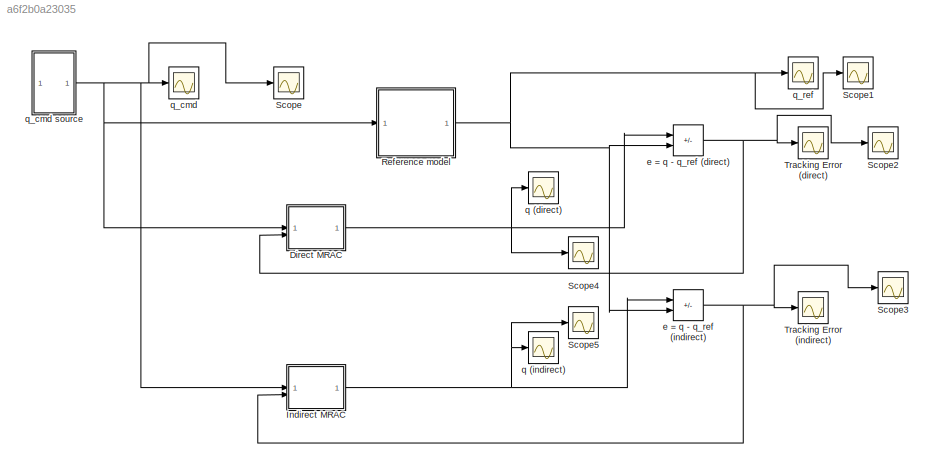
MODEL slx_a6f2b0a23035
KIND model
CONFIG AbsTol = auto
CONFIG EnableMultiTasking = off
CONFIG FixedStep = auto
CONFIG MaxStep = auto
CONFIG MinStep = auto
CONFIG RelTol = 1e-3
CONFIG SampleTimeConstraint = Unconstrained
CONFIG SolverName = VariableStepAuto
CONFIG StartTime = 0.0
CONFIG StopTime = 50
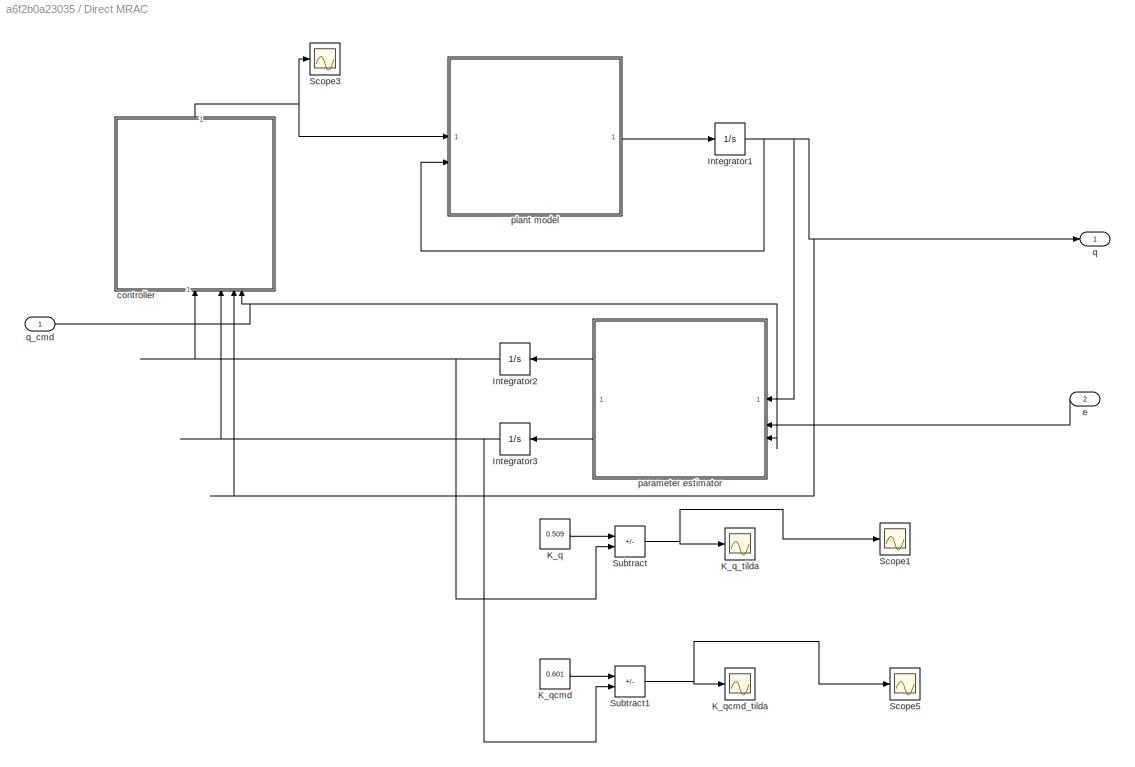
BLOCK [SubSystem] Direct MRAC
BLOCK [Integrator] Direct MRAC/Integrator1
  InitialCondition = 1
BLOCK [Integrator] Direct MRAC/Integrator2
  NameLocation = top
BLOCK [Integrator] Direct MRAC/Integrator3
  NameLocation = top
BLOCK [Constant] Direct MRAC/K_q
  Value = 0.509
BLOCK [Scope] Direct MRAC/K_q_tilda
  Floating = off
  NumInputPorts = 1
  ScopeSpecificationString = Simulink.scopes.TimeScopeBlockCfg('CurrentConfiguration', extmgr.ConfigurationSet(extmgr.Configuration('Core','General UI',true),extmgr.Configuration('Core','Source UI',true),extmgr.Configuration('Sources','WiredSimulink',true,'DataLoggingVariableName','ScopeData2'),extmgr.Configuration('Visuals','Time Domain',true,'SerializedDisplays',{struct('MinYLimReal','0.48767','MaxYLimReal','0.57619','YLabe...<+1463ch>
BLOCK [Constant] Direct MRAC/K_qcmd
  Value = 0.601
BLOCK [Scope] Direct MRAC/K_qcmd_tilda
  Floating = off
  NumInputPorts = 1
  ScopeSpecificationString = Simulink.scopes.TimeScopeBlockCfg('CurrentConfiguration', extmgr.ConfigurationSet(extmgr.Configuration('Core','General UI',true),extmgr.Configuration('Core','Source UI',true),extmgr.Configuration('Sources','WiredSimulink',true,'DataLoggingVariableName','ScopeData1'),extmgr.Configuration('Visuals','Time Domain',true,'SerializedDisplays',{struct('MinYLimReal','0.50731','MaxYLimReal','0.67185','YLabe...<+1418ch>
BLOCK [Scope] Direct MRAC/Scope1
  Floating = off
  NumInputPorts = 1
  ScopeSpecificationString = Simulink.scopes.TimeScopeBlockCfg('CurrentConfiguration', extmgr.ConfigurationSet(extmgr.Configuration('Core','General UI',true,'FigureColor',[1 1 1]),extmgr.Configuration('Core','Source UI',true),extmgr.Configuration('Sources','WiredSimulink',true,'DataLoggingVariableName','ScopeData10'),extmgr.Configuration('Visuals','Time Domain',true,'SerializedDisplays',{struct('MinYLimReal','-0.05368','MaxYL...<+1728ch>
BLOCK [Scope] Direct MRAC/Scope3
  Floating = off
  NumInputPorts = 1
  ScopeSpecificationString = Simulink.scopes.TimeScopeBlockCfg('CurrentConfiguration', extmgr.ConfigurationSet(extmgr.Configuration('Core','General UI',true,'FigureColor',[1 1 1]),extmgr.Configuration('Core','Source UI',true),extmgr.Configuration('Sources','WiredSimulink',true,'DataLoggingVariableName','ScopeData1'),extmgr.Configuration('Visuals','Time Domain',true,'SerializedDisplays',{struct('MinYLimReal','-2.52954','MaxYLi...<+1703ch>
BLOCK [Scope] Direct MRAC/Scope5
  Floating = off
  NumInputPorts = 1
  ScopeSpecificationString = Simulink.scopes.TimeScopeBlockCfg('CurrentConfiguration', extmgr.ConfigurationSet(extmgr.Configuration('Core','General UI',true,'FigureColor',[1 1 1]),extmgr.Configuration('Core','Source UI',true),extmgr.Configuration('Sources','WiredSimulink',true,'DataLoggingVariableName','ScopeData9'),extmgr.Configuration('Visuals','Time Domain',true,'SerializedDisplays',{struct('MinYLimReal','-0.08464','MaxYLi...<+1728ch>
BLOCK [Sum] Direct MRAC/Subtract
  IconShape = rectangular
  Inputs = +-
BLOCK [Sum] Direct MRAC/Subtract1
  IconShape = rectangular
  Inputs = +-
BLOCK [SubSystem] Direct MRAC/controller
  ErrorFcn = Stateflow.Translate.translate
  LibrarySourceBlock = simulink/User-Defined\nFunctions/MATLAB Function
  NameLocation = right
  PermitHierarchicalResolution = ExplicitOnly
  SFBlockType = MATLAB Function
  TreatAsAtomicUnit = on
BLOCK [Demux] Direct MRAC/controller/ Demux 
  Outputs = 1
BLOCK [S-Function] Direct MRAC/controller/ SFunction 
  EnableBusSupport = on
  FunctionName = sf_sfun
  PortCounts = [4 2]
  SFcnIsStateOwnerBlock = off
  SFunctionDeploymentMode = off
  Tag = Stateflow S-Function 4
BLOCK [Terminator] Direct MRAC/controller/ Terminator 
BLOCK [Inport] Direct MRAC/controller/K_q_hat
BLOCK [Inport] Direct MRAC/controller/K_qcmd_hat
  Port = 2
BLOCK [Outport] Direct MRAC/controller/del
BLOCK [Inport] Direct MRAC/controller/q
  Port = 3
BLOCK [Inport] Direct MRAC/controller/q_cmd
  Port = 4
BLOCK [Inport] Direct MRAC/e
  NameLocation = top
  Port = 2
BLOCK [SubSystem] Direct MRAC/parameter estimator
  ErrorFcn = Stateflow.Translate.translate
  LibrarySourceBlock = simulink/User-Defined\nFunctions/MATLAB Function
  NameLocation = top
  PermitHierarchicalResolution = ExplicitOnly
  SFBlockType = MATLAB Function
  TreatAsAtomicUnit = on
BLOCK [Demux] Direct MRAC/parameter estimator/ Demux 
  Outputs = 1
BLOCK [S-Function] Direct MRAC/parameter estimator/ SFunction 
  EnableBusSupport = on
  FunctionName = sf_sfun
  PortCounts = [3 3]
  SFcnIsStateOwnerBlock = off
  SFunctionDeploymentMode = off
  Tag = Stateflow S-Function 9
BLOCK [Terminator] Direct MRAC/parameter estimator/ Terminator 
BLOCK [Outport] Direct MRAC/parameter estimator/K_q_hat_dot
BLOCK [Outport] Direct MRAC/parameter estimator/K_qcmd_hat_dot
  Port = 2
BLOCK [Inport] Direct MRAC/parameter estimator/e
  Port = 2
BLOCK [Inport] Direct MRAC/parameter estimator/q
BLOCK [Inport] Direct MRAC/parameter estimator/q_cmd
  Port = 3
BLOCK [SubSystem] Direct MRAC/plant model
  ErrorFcn = Stateflow.Translate.translate
  LibrarySourceBlock = simulink/User-Defined\nFunctions/MATLAB Function
  PermitHierarchicalResolution = ExplicitOnly
  SFBlockType = MATLAB Function
  TreatAsAtomicUnit = on
BLOCK [Demux] Direct MRAC/plant model/ Demux 
  Outputs = 1
BLOCK [S-Function] Direct MRAC/plant model/ SFunction 
  EnableBusSupport = on
  FunctionName = sf_sfun
  PortCounts = [2 2]
  SFcnIsStateOwnerBlock = off
  SFunctionDeploymentMode = off
  Tag = Stateflow S-Function 1
BLOCK [Terminator] Direct MRAC/plant model/ Terminator 
BLOCK [Inport] Direct MRAC/plant model/del
BLOCK [Inport] Direct MRAC/plant model/q
  Port = 2
BLOCK [Outport] Direct MRAC/plant model/q_dot
BLOCK [Outport] Direct MRAC/q
BLOCK [Inport] Direct MRAC/q_cmd
  NameLocation = top
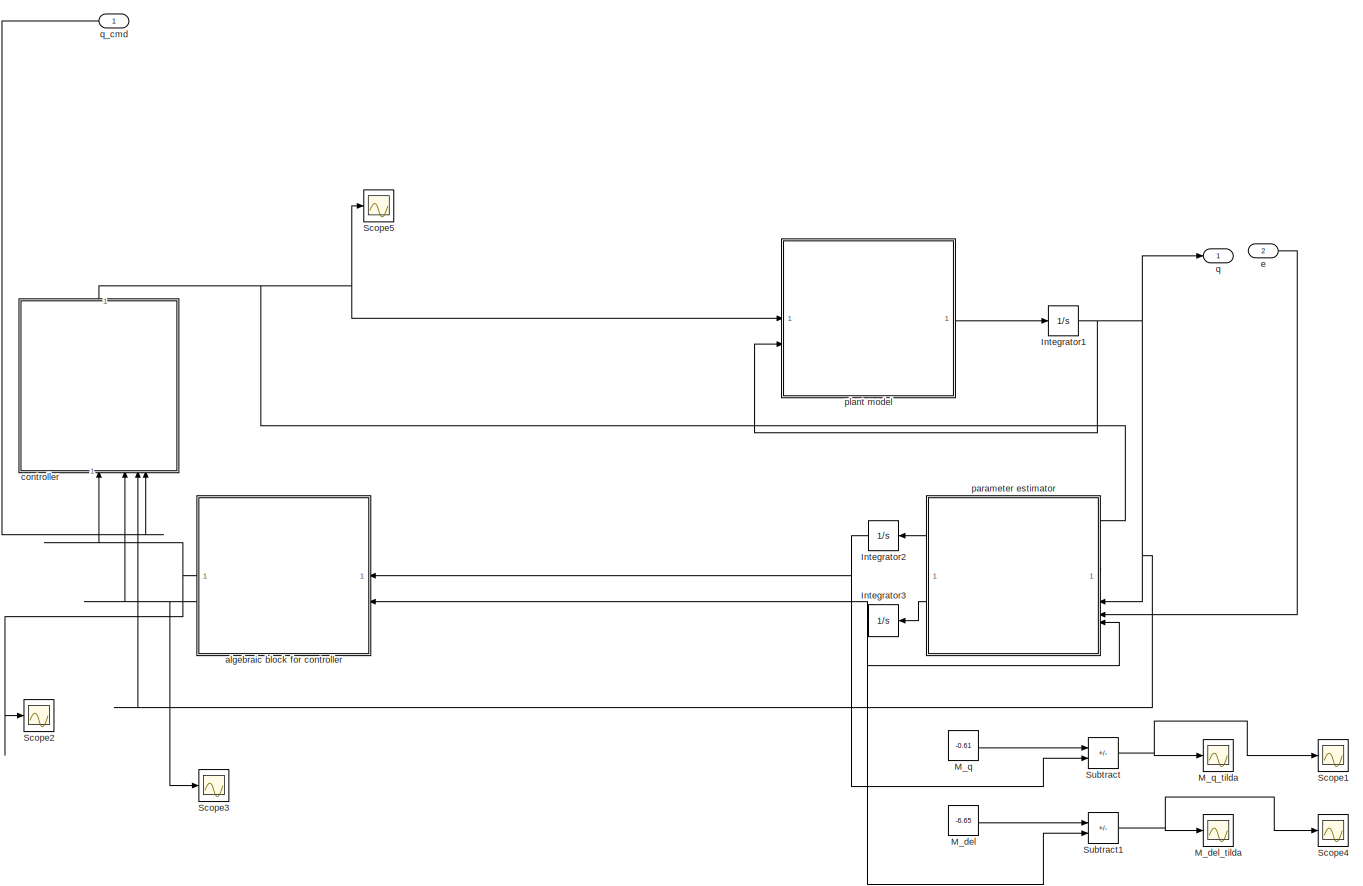
[diagram: Indirect MRAC - part 1/1, most of the canvas]
BLOCK [SubSystem] Indirect MRAC
BLOCK [Integrator] Indirect MRAC/Integrator1
  InitialCondition = 1
BLOCK [Integrator] Indirect MRAC/Integrator2
  NameLocation = top
BLOCK [Integrator] Indirect MRAC/Integrator3
  InitialCondition = -2.5
  NameLocation = top
BLOCK [Constant] Indirect MRAC/M_del
  Value = -6.65
BLOCK [Scope] Indirect MRAC/M_del_tilda
  Floating = off
  NumInputPorts = 1
  ScopeSpecificationString = Simulink.scopes.TimeScopeBlockCfg('CurrentConfiguration', extmgr.ConfigurationSet(extmgr.Configuration('Core','General UI',true),extmgr.Configuration('Core','Source UI',true),extmgr.Configuration('Sources','WiredSimulink',true,'DataLoggingVariableName','ScopeData5'),extmgr.Configuration('Visuals','Time Domain',true,'SerializedDisplays',{struct('MinYLimReal','-4.18211','MaxYLimReal','-3.92936','YLa...<+1468ch>
BLOCK [Constant] Indirect MRAC/M_q
  Value = -0.61
BLOCK [Scope] Indirect MRAC/M_q_tilda
  Floating = off
  NumInputPorts = 1
  ScopeSpecificationString = Simulink.scopes.TimeScopeBlockCfg('CurrentConfiguration', extmgr.ConfigurationSet(extmgr.Configuration('Core','General UI',true),extmgr.Configuration('Core','Source UI',true),extmgr.Configuration('Sources','WiredSimulink',true,'DataLoggingVariableName','ScopeData4'),extmgr.Configuration('Visuals','Time Domain',true,'SerializedDisplays',{struct('MinYLimReal','-2.34858','MaxYLimReal','-0.15872','YLa...<+1440ch>
BLOCK [Scope] Indirect MRAC/Scope1
  Floating = off
  NumInputPorts = 1
  ScopeSpecificationString = Simulink.scopes.TimeScopeBlockCfg('CurrentConfiguration', extmgr.ConfigurationSet(extmgr.Configuration('Core','General UI',true,'FigureColor',[1 1 1]),extmgr.Configuration('Core','Source UI',true),extmgr.Configuration('Sources','WiredSimulink',true,'DataLoggingVariableName','ScopeData12'),extmgr.Configuration('Visuals','Time Domain',true,'SerializedDisplays',{struct('MinYLimReal','-1.08099','MaxYL...<+1705ch>
BLOCK [Scope] Indirect MRAC/Scope2
  Floating = off
  NumInputPorts = 1
  ScopeSpecificationString = Simulink.scopes.TimeScopeBlockCfg('CurrentConfiguration', extmgr.ConfigurationSet(extmgr.Configuration('Core','General UI',true),extmgr.Configuration('Core','Source UI',true),extmgr.Configuration('Sources','WiredSimulink',true,'DataLoggingVariableName','ScopeData6'),extmgr.Configuration('Visuals','Time Domain',true,'SerializedDisplays',{struct('MinYLimReal','1.44142','MaxYLimReal','1.53865','YLabe...<+1466ch>
BLOCK [Scope] Indirect MRAC/Scope3
  Floating = off
  NumInputPorts = 1
  ScopeSpecificationString = Simulink.scopes.TimeScopeBlockCfg('CurrentConfiguration', extmgr.ConfigurationSet(extmgr.Configuration('Core','General UI',true),extmgr.Configuration('Core','Source UI',true),extmgr.Configuration('Sources','WiredSimulink',true,'DataLoggingVariableName','ScopeData7'),extmgr.Configuration('Visuals','Time Domain',true,'SerializedDisplays',{struct('MinYLimReal','1.46898','MaxYLimReal','1.61943','YLabe...<+1469ch>
BLOCK [Scope] Indirect MRAC/Scope4
  Floating = off
  NumInputPorts = 1
  ScopeSpecificationString = Simulink.scopes.TimeScopeBlockCfg('CurrentConfiguration', extmgr.ConfigurationSet(extmgr.Configuration('Core','General UI',true,'FigureColor',[1 1 1]),extmgr.Configuration('Core','Source UI',true),extmgr.Configuration('Sources','WiredSimulink',true,'DataLoggingVariableName','ScopeData11'),extmgr.Configuration('Visuals','Time Domain',true,'SerializedDisplays',{struct('MinYLimReal','-4.42254','MaxYL...<+1706ch>
BLOCK [Scope] Indirect MRAC/Scope5
  Floating = off
  NumInputPorts = 1
  ScopeSpecificationString = Simulink.scopes.TimeScopeBlockCfg('CurrentConfiguration', extmgr.ConfigurationSet(extmgr.Configuration('Core','General UI',true,'FigureColor',[1 1 1]),extmgr.Configuration('Core','Source UI',true),extmgr.Configuration('Sources','WiredSimulink',true,'DataLoggingVariableName','ScopeData2'),extmgr.Configuration('Visuals','Time Domain',true,'SerializedDisplays',{struct('MinYLimReal','-6.99195','MaxYLi...<+1703ch>
BLOCK [Sum] Indirect MRAC/Subtract
  IconShape = rectangular
  Inputs = +-
BLOCK [Sum] Indirect MRAC/Subtract1
  IconShape = rectangular
  Inputs = +-
BLOCK [SubSystem] Indirect MRAC/algebraic block for controller
  ErrorFcn = Stateflow.Translate.translate
  LibrarySourceBlock = simulink/User-Defined\nFunctions/MATLAB Function
  NameLocation = top
  PermitHierarchicalResolution = ExplicitOnly
  SFBlockType = MATLAB Function
  TreatAsAtomicUnit = on
BLOCK [Demux] Indirect MRAC/algebraic block for controller/ Demux 
  Outputs = 1
BLOCK [S-Function] Indirect MRAC/algebraic block for controller/ SFunction 
  EnableBusSupport = on
  FunctionName = sf_sfun
  PortCounts = [2 3]
  SFcnIsStateOwnerBlock = off
  SFunctionDeploymentMode = off
  Tag = Stateflow S-Function 8
BLOCK [Terminator] Indirect MRAC/algebraic block for controller/ Terminator 
BLOCK [Outport] Indirect MRAC/algebraic block for controller/K_q_hat
BLOCK [Outport] Indirect MRAC/algebraic block for controller/K_qcmd_hat
  Port = 2
BLOCK [Inport] Indirect MRAC/algebraic block for controller/M_del_hat
  Port = 2
BLOCK [Inport] Indirect MRAC/algebraic block for controller/M_q_hat
BLOCK [SubSystem] Indirect MRAC/controller
  ErrorFcn = Stateflow.Translate.translate
  LibrarySourceBlock = simulink/User-Defined\nFunctions/MATLAB Function
  NameLocation = right
  PermitHierarchicalResolution = ExplicitOnly
  SFBlockType = MATLAB Function
  TreatAsAtomicUnit = on
BLOCK [Demux] Indirect MRAC/controller/ Demux 
  Outputs = 1
BLOCK [S-Function] Indirect MRAC/controller/ SFunction 
  EnableBusSupport = on
  FunctionName = sf_sfun
  PortCounts = [4 2]
  SFcnIsStateOwnerBlock = off
  SFunctionDeploymentMode = off
  Tag = Stateflow S-Function 5
BLOCK [Terminator] Indirect MRAC/controller/ Terminator 
BLOCK [Inport] Indirect MRAC/controller/K_q_hat
BLOCK [Inport] Indirect MRAC/controller/K_qcmd_hat
  Port = 2
BLOCK [Outport] Indirect MRAC/controller/del
BLOCK [Inport] Indirect MRAC/controller/q
  Port = 3
BLOCK [Inport] Indirect MRAC/controller/q_cmd
  Port = 4
BLOCK [Inport] Indirect MRAC/e
  Port = 2
BLOCK [SubSystem] Indirect MRAC/parameter estimator
  ErrorFcn = Stateflow.Translate.translate
  LibrarySourceBlock = simulink/User-Defined\nFunctions/MATLAB Function
  NameLocation = top
  PermitHierarchicalResolution = ExplicitOnly
  SFBlockType = MATLAB Function
  TreatAsAtomicUnit = on
BLOCK [Demux] Indirect MRAC/parameter estimator/ Demux 
  Outputs = 1
BLOCK [S-Function] Indirect MRAC/parameter estimator/ SFunction 
  EnableBusSupport = on
  FunctionName = sf_sfun
  PortCounts = [4 3]
  SFcnIsStateOwnerBlock = off
  SFunctionDeploymentMode = off
  Tag = Stateflow S-Function 6
BLOCK [Terminator] Indirect MRAC/parameter estimator/ Terminator 
BLOCK [Inport] Indirect MRAC/parameter estimator/M_del_hat
  Port = 4
BLOCK [Outport] Indirect MRAC/parameter estimator/M_del_hat_dot
  Port = 2
BLOCK [Outport] Indirect MRAC/parameter estimator/M_q_hat_dot
BLOCK [Inport] Indirect MRAC/parameter estimator/del
BLOCK [Inport] Indirect MRAC/parameter estimator/e
  Port = 3
BLOCK [Inport] Indirect MRAC/parameter estimator/q
  Port = 2
BLOCK [SubSystem] Indirect MRAC/plant model
  ErrorFcn = Stateflow.Translate.translate
  LibrarySourceBlock = simulink/User-Defined\nFunctions/MATLAB Function
  PermitHierarchicalResolution = ExplicitOnly
  SFBlockType = MATLAB Function
  TreatAsAtomicUnit = on
BLOCK [Demux] Indirect MRAC/plant model/ Demux 
  Outputs = 1
BLOCK [S-Function] Indirect MRAC/plant model/ SFunction 
  EnableBusSupport = on
  FunctionName = sf_sfun
  PortCounts = [2 2]
  SFcnIsStateOwnerBlock = off
  SFunctionDeploymentMode = off
  Tag = Stateflow S-Function 7
BLOCK [Terminator] Indirect MRAC/plant model/ Terminator 
BLOCK [Inport] Indirect MRAC/plant model/del
BLOCK [Inport] Indirect MRAC/plant model/q
  Port = 2
BLOCK [Outport] Indirect MRAC/plant model/q_dot
BLOCK [Outport] Indirect MRAC/q
  IconDisplay = Port number and signal name
BLOCK [Inport] Indirect MRAC/q_cmd
BLOCK [SubSystem] Reference model
BLOCK [Integrator] Reference model/Integrator
BLOCK [Inport] Reference model/q_cmd
BLOCK [Outport] Reference model/q_ref
  IconDisplay = Port number and signal name
BLOCK [SubSystem] Reference model/reference model
  ErrorFcn = Stateflow.Translate.translate
  LibrarySourceBlock = simulink/User-Defined\nFunctions/MATLAB Function
  PermitHierarchicalResolution = ExplicitOnly
  SFBlockType = MATLAB Function
  TreatAsAtomicUnit = on
BLOCK [Demux] Reference model/reference model/ Demux 
  Outputs = 1
BLOCK [S-Function] Reference model/reference model/ SFunction 
  EnableBusSupport = on
  FunctionName = sf_sfun
  PortCounts = [2 2]
  SFcnIsStateOwnerBlock = off
  SFunctionDeploymentMode = off
  Tag = Stateflow S-Function 2
BLOCK [Terminator] Reference model/reference model/ Terminator 
BLOCK [Inport] Reference model/reference model/q_cmd
BLOCK [Inport] Reference model/reference model/q_ref
  Port = 2
BLOCK [Outport] Reference model/reference model/q_ref_dot
BLOCK [Scope] Scope
  Floating = off
  NumInputPorts = 1
  ScopeSpecificationString = Simulink.scopes.TimeScopeBlockCfg('CurrentConfiguration', extmgr.ConfigurationSet(extmgr.Configuration('Core','General UI',true,'FigureColor',[1 1 1]),extmgr.Configuration('Core','Source UI',true),extmgr.Configuration('Sources','WiredSimulink',true,'DataLoggingVariableName','ScopeData3'),extmgr.Configuration('Visuals','Time Domain',true,'SerializedDisplays',{struct('MinYLimReal','-3','MaxYLimReal'...<+1677ch>
BLOCK [Scope] Scope1
  Floating = off
  NumInputPorts = 1
  ScopeSpecificationString = Simulink.scopes.TimeScopeBlockCfg('CurrentConfiguration', extmgr.ConfigurationSet(extmgr.Configuration('Core','General UI',true,'FigureColor',[1 1 1]),extmgr.Configuration('Core','Source UI',true),extmgr.Configuration('Sources','WiredSimulink',true,'DataLoggingVariableName','ScopeData4'),extmgr.Configuration('Visuals','Time Domain',true,'SerializedDisplays',{struct('MinYLimReal','-4','MaxYLimReal'...<+1684ch>
BLOCK [Scope] Scope2
  Floating = off
  NumInputPorts = 1
  ScopeSpecificationString = Simulink.scopes.TimeScopeBlockCfg('CurrentConfiguration', extmgr.ConfigurationSet(extmgr.Configuration('Core','General UI',true,'FigureColor',[1 1 1]),extmgr.Configuration('Core','Source UI',true),extmgr.Configuration('Sources','WiredSimulink',true,'DataLoggingVariableName','ScopeData5'),extmgr.Configuration('Visuals','Time Domain',true,'SerializedDisplays',{struct('MinYLimReal','-0.51033','MaxYLi...<+1743ch>
BLOCK [Scope] Scope3
  Floating = off
  NumInputPorts = 1
  ScopeSpecificationString = Simulink.scopes.TimeScopeBlockCfg('CurrentConfiguration', extmgr.ConfigurationSet(extmgr.Configuration('Core','General UI',true,'FigureColor',[1 1 1]),extmgr.Configuration('Core','Source UI',true),extmgr.Configuration('Sources','WiredSimulink',true,'DataLoggingVariableName','ScopeData6'),extmgr.Configuration('Visuals','Time Domain',true,'SerializedDisplays',{struct('MinYLimReal','-1.46988','MaxYLi...<+1718ch>
BLOCK [Scope] Scope4
  Floating = off
  NumInputPorts = 1
  ScopeSpecificationString = Simulink.scopes.TimeScopeBlockCfg('CurrentConfiguration', extmgr.ConfigurationSet(extmgr.Configuration('Core','General UI',true,'FigureColor',[1 1 1]),extmgr.Configuration('Core','Source UI',true),extmgr.Configuration('Sources','WiredSimulink',true,'DataLoggingVariableName','ScopeData7'),extmgr.Configuration('Visuals','Time Domain',true,'SerializedDisplays',{struct('MinYLimReal','-3.63022','MaxYLi...<+1704ch>
BLOCK [Scope] Scope5
  Floating = off
  NumInputPorts = 1
  ScopeSpecificationString = Simulink.scopes.TimeScopeBlockCfg('CurrentConfiguration', extmgr.ConfigurationSet(extmgr.Configuration('Core','General UI',true,'FigureColor',[1 1 1]),extmgr.Configuration('Core','Source UI',true),extmgr.Configuration('Sources','WiredSimulink',true,'DataLoggingVariableName','ScopeData8'),extmgr.Configuration('Visuals','Time Domain',true,'SerializedDisplays',{struct('MinYLimReal','-3.62304','MaxYLi...<+1706ch>
BLOCK [Scope] Tracking Error  (indirect)
  Floating = off
  NumInputPorts = 1
  ScopeSpecificationString = Simulink.scopes.TimeScopeBlockCfg('CurrentConfiguration', extmgr.ConfigurationSet(extmgr.Configuration('Core','General UI',true),extmgr.Configuration('Core','Source UI',true),extmgr.Configuration('Sources','WiredSimulink',true,'DataLoggingVariableName','ScopeData9'),extmgr.Configuration('Visuals','Time Domain',true,'SerializedDisplays',{struct('MinYLimReal','-5.81272','MaxYLimReal','4.88727','YLab...<+1573ch>
BLOCK [Scope] Tracking Error (direct)
  Floating = off
  NumInputPorts = 1
  ScopeSpecificationString = Simulink.scopes.TimeScopeBlockCfg('CurrentConfiguration', extmgr.ConfigurationSet(extmgr.Configuration('Core','General UI',true),extmgr.Configuration('Core','Source UI',true),extmgr.Configuration('Sources','WiredSimulink',true,'DataLoggingVariableName','ScopeData3'),extmgr.Configuration('Visuals','Time Domain',true,'SerializedDisplays',{struct('MinYLimReal','-1.36079','MaxYLimReal','1.54776','YLab...<+1597ch>
BLOCK [Sum] e = q - q_ref (direct)
  IconShape = rectangular
  Inputs = +-
BLOCK [Sum] e = q - q_ref (indirect)
  IconShape = rectangular
  Inputs = +-
BLOCK [Scope] q (direct)
  Floating = off
  NumInputPorts = 1
  ScopeSpecificationString = Simulink.scopes.TimeScopeBlockCfg('CurrentConfiguration', extmgr.ConfigurationSet(extmgr.Configuration('Core','General UI',true),extmgr.Configuration('Core','Source UI',true),extmgr.Configuration('Sources','WiredSimulink',true,'DataLoggingVariableName','ScopeData1'),extmgr.Configuration('Visuals','Time Domain',true,'SerializedDisplays',{struct('MinYLimReal','-4','MaxYLimReal','3','YLabelReal','','...<+1536ch>
BLOCK [Scope] q (indirect)
  Floating = off
  NumInputPorts = 1
  ScopeSpecificationString = Simulink.scopes.TimeScopeBlockCfg('CurrentConfiguration', extmgr.ConfigurationSet(extmgr.Configuration('Core','General UI',true),extmgr.Configuration('Core','Source UI',true),extmgr.Configuration('Sources','WiredSimulink',true,'DataLoggingVariableName','ScopeData8'),extmgr.Configuration('Visuals','Time Domain',true,'SerializedDisplays',{struct('MinYLimReal','-3.62304','MaxYLimReal','2.60701','YLab...<+1562ch>
BLOCK [Scope] q_cmd
  Floating = off
  NumInputPorts = 1
  ScopeSpecificationString = Simulink.scopes.TimeScopeBlockCfg('CurrentConfiguration', extmgr.ConfigurationSet(extmgr.Configuration('Core','General UI',true,'FigureColor',[0 0 0]),extmgr.Configuration('Core','Source UI',true),extmgr.Configuration('Sources','WiredSimulink',true,'DataLoggingVariableName','ScopeData2'),extmgr.Configuration('Visuals','Time Domain',true,'SerializedDisplays',{struct('MinYLimReal','-4','MaxYLimReal'...<+1433ch>
BLOCK [SubSystem] q_cmd source
BLOCK [Sum] q_cmd source/Add
  IconShape = rectangular
  Inputs = ++++
BLOCK [Outport] q_cmd source/q_cmd
BLOCK [SubSystem] q_cmd source/q_cmd(t)
  ClipboardFcn = sigbuilder_block('clipboard');
  CloseFcn = sigbuilder_block('close');
  ContinueFcn = sigbuilder_block('continue');
  CopyFcn = sigbuilder_block('copy');
  DeleteFcn = sigbuilder_block('delete');
  LoadFcn = sigbuilder_block('load');
  MaskHideContents = on
  ModelCloseFcn = sigbuilder_block('modelClose');
  NameChangeFcn = sigbuilder_block('namechange');
  OpenFcn = sigbuilder_block('open',[437.6 199.2 550.4 400 ]);
  PauseFcn = sigbuilder_block('pause');
  PreSaveFcn = sigbuilder_block('preSave');
  StartFcn = sigbuilder_block('start');
  StopFcn = sigbuilder_block('stop');
  Tag = STV Subsys
BLOCK [Demux] q_cmd source/q_cmd(t)/Demux
  DisplayOption = none
  Tag = STV Demux
BLOCK [FromWorkspace] q_cmd source/q_cmd(t)/FromWs
  Tag = STV FromWs
  VariableName = tuvar
BLOCK [Outport] q_cmd source/q_cmd(t)/Signal 1
  Port = 4
  Tag = STV Outport
BLOCK [Outport] q_cmd source/q_cmd(t)/Signal 2
  Tag = STV Outport
BLOCK [Outport] q_cmd source/q_cmd(t)/Signal 3
  Port = 2
  Tag = STV Outport
BLOCK [Outport] q_cmd source/q_cmd(t)/Signal 4
  Port = 3
  Tag = STV Outport
BLOCK [Scope] q_ref
  Floating = off
  NumInputPorts = 1
  ScopeSpecificationString = Simulink.scopes.TimeScopeBlockCfg('CurrentConfiguration', extmgr.ConfigurationSet(extmgr.Configuration('Core','General UI',true),extmgr.Configuration('Core','Source UI',true),extmgr.Configuration('Sources','WiredSimulink',true),extmgr.Configuration('Visuals','Time Domain',true,'SerializedDisplays',{struct('MinYLimReal','-4','MaxYLimReal','4','YLabelReal','','MinYLimMag','0.00000','MaxYLimMag','3.6...<+1378ch>
NET Direct MRAC/Integrator1:1 -> Direct MRAC/controller:3, Direct MRAC/parameter estimator:1, Direct MRAC/plant model:2, Direct MRAC/q:1
NET Direct MRAC/Integrator2:1 -> Direct MRAC/Subtract:2, Direct MRAC/controller:1
NET Direct MRAC/Integrator3:1 -> Direct MRAC/Subtract1:2, Direct MRAC/controller:2
LINE Direct MRAC/K_q:1 -> Direct MRAC/Subtract:1
LINE Direct MRAC/K_qcmd:1 -> Direct MRAC/Subtract1:1
NET Direct MRAC/Subtract1:1 -> Direct MRAC/K_qcmd_tilda:1, Direct MRAC/Scope5:1
NET Direct MRAC/Subtract:1 -> Direct MRAC/K_q_tilda:1, Direct MRAC/Scope1:1
NET Direct MRAC/controller:1 -> Direct MRAC/Scope3:1, Direct MRAC/plant model:1
LINE Direct MRAC/e:1 -> Direct MRAC/parameter estimator:2
LINE Direct MRAC/parameter estimator:1 -> Direct MRAC/Integrator2:1
LINE Direct MRAC/parameter estimator:2 -> Direct MRAC/Integrator3:1
LINE Direct MRAC/plant model:1 -> Direct MRAC/Integrator1:1
NET Direct MRAC/q_cmd:1 -> Direct MRAC/controller:4, Direct MRAC/parameter estimator:3
NET Direct MRAC:1 -> Scope4:1, e = q - q_ref (direct):1, q (direct):1
NET Indirect MRAC/Integrator1:1 -> Indirect MRAC/controller:3, Indirect MRAC/parameter estimator:2, Indirect MRAC/plant model:2, Indirect MRAC/q:1
NET Indirect MRAC/Integrator2:1 -> Indirect MRAC/Subtract:2, Indirect MRAC/algebraic block for controller:1
NET Indirect MRAC/Integrator3:1 -> Indirect MRAC/Subtract1:2, Indirect MRAC/algebraic block for controller:2, Indirect MRAC/parameter estimator:4
LINE Indirect MRAC/M_del:1 -> Indirect MRAC/Subtract1:1
LINE Indirect MRAC/M_q:1 -> Indirect MRAC/Subtract:1
NET Indirect MRAC/Subtract1:1 -> Indirect MRAC/M_del_tilda:1, Indirect MRAC/Scope4:1
NET Indirect MRAC/Subtract:1 -> Indirect MRAC/M_q_tilda:1, Indirect MRAC/Scope1:1
NET Indirect MRAC/algebraic block for controller:1 -> Indirect MRAC/Scope2:1, Indirect MRAC/controller:1
NET Indirect MRAC/algebraic block for controller:2 -> Indirect MRAC/Scope3:1, Indirect MRAC/controller:2
NET Indirect MRAC/controller:1 -> Indirect MRAC/Scope5:1, Indirect MRAC/parameter estimator:1, Indirect MRAC/plant model:1
LINE Indirect MRAC/e:1 -> Indirect MRAC/parameter estimator:3
LINE Indirect MRAC/parameter estimator:1 -> Indirect MRAC/Integrator2:1
LINE Indirect MRAC/parameter estimator:2 -> Indirect MRAC/Integrator3:1
LINE Indirect MRAC/plant model:1 -> Indirect MRAC/Integrator1:1
LINE Indirect MRAC/q_cmd:1 -> Indirect MRAC/controller:4
NET Indirect MRAC:1 -> Scope5:1, e = q - q_ref (indirect):1, q (indirect):1
NET Reference model/Integrator:1 -> Reference model/q_ref:1, Reference model/reference model:2
LINE Reference model/q_cmd:1 -> Reference model/reference model:1
LINE Reference model/reference model:1 -> Reference model/Integrator:1
NET Reference model:1 -> Scope1:1, e = q - q_ref (direct):2, e = q - q_ref (indirect):2, q_ref:1
NET e = q - q_ref (direct):1 -> Direct MRAC:2, Scope2:1, Tracking Error (direct):1
NET e = q - q_ref (indirect):1 -> Indirect MRAC:2, Scope3:1, Tracking Error  (indirect):1
LINE q_cmd source/Add:1 -> q_cmd source/q_cmd:1
LINE q_cmd source/q_cmd(t):1 -> q_cmd source/Add:1
LINE q_cmd source/q_cmd(t):2 -> q_cmd source/Add:2
LINE q_cmd source/q_cmd(t):3 -> q_cmd source/Add:3
LINE q_cmd source/q_cmd(t):4 -> q_cmd source/Add:4
NET q_cmd source:1 -> Direct MRAC:1, Indirect MRAC:1, Reference model:1, Scope:1, q_cmd:1
note: NET lines group one-source signal fan-out (src -> all destinations, sorted); 1:1 wires keep LINE
CHART Direct MRAC/plant model states=1 transitions=1
  STATE_LABEL 'eML_blk_kernel()'
  STATE_LABEL 'SCRIPT:\nfunction q_dot = fcn(del, q)\nM_q = -0.61;\nM_del = -6.65;\nq_dot = M_q*q - abs(M_del)*del;\n'
CHART Reference model/reference model states=1 transitions=1
  STATE_LABEL 'eML_blk_kernel()'
  STATE_LABEL 'SCRIPT:\nfunction q_ref_dot = fcn(q_cmd, q_ref)\nM_qr = -4;\nM_delr = -4;\nq_ref_dot = M_qr*q_ref + M_delr*q_cmd;\n'
CHART Direct MRAC/controller states=1 transitions=1
  STATE_LABEL 'eML_blk_kernel()'
  STATE_LABEL 'SCRIPT:\nfunction del = fcn(K_q_hat, K_qcmd_hat, q, q_cmd)\ndel = K_q_hat*q + K_qcmd_hat*q_cmd;\n'
CHART Indirect MRAC/controller states=1 transitions=1
  STATE_LABEL 'eML_blk_kernel()'
  STATE_LABEL 'SCRIPT:\nfunction del = fcn(K_q_hat, K_qcmd_hat, q, q_cmd)\ndel = K_q_hat*q + K_qcmd_hat*q_cmd;\n'
CHART Indirect MRAC/parameter estimator states=1 transitions=1
  STATE_LABEL 'eML_blk_kernel()'
  STATE_LABEL 'SCRIPT:\nfunction [M_q_hat_dot,M_del_hat_dot] = fcn(del, q, e, M_del_hat)\ngamma_q = 1;\ngamma_del = 1;\nb = 2;\nM_q_hat_dot = gamma_q*q*e;\nif abs(M_del_hat) > b\n    M_del_hat_dot = gamma_del*del*e;\nelse\n    M_del_hat_dot = 0;\nend\n\n'
CHART Indirect MRAC/plant model states=1 transitions=1
  STATE_LABEL 'eML_blk_kernel()'
  STATE_LABEL 'SCRIPT:\nfunction q_dot = fcn(del, q)\nM_q = -0.61;\nM_del = -6.65;\nq_dot = M_q*q - abs(M_del)*del;\n'
CHART Indirect MRAC/algebraic block for controller states=1 transitions=1
  STATE_LABEL 'eML_blk_kernel()'
  STATE_LABEL 'SCRIPT:\nfunction [K_q_hat,K_qcmd_hat] = fcn(M_q_hat,M_del_hat)\nM_qr = -4;\nM_delr = -4;\nK_q_hat = (M_qr - M_q_hat)/M_del_hat;\nK_qcmd_hat = M_delr/M_del_hat;\n\n'
CHART Direct MRAC/parameter estimator states=1 transitions=1
  STATE_LABEL 'eML_blk_kernel()'
  STATE_LABEL 'SCRIPT:\nfunction [K_q_hat_dot,K_qcmd_hat_dot] = fcn(q, e, q_cmd)\ngamma_q = 1;\ngamma_del = 1;\n\nK_q_hat_dot = gamma_q*q*e;\nK_qcmd_hat_dot = gamma_del*q_cmd*e;\n\n\n'
CHART  states=0 transitions=0
CHART  states=0 transitions=0
CHART  states=0 transitions=0
CHART  states=0 transitions=0
CHART  states=0 transitions=0
CHART  states=0 transitions=0
CHART  states=0 transitions=0
CHART  states=0 transitions=0
